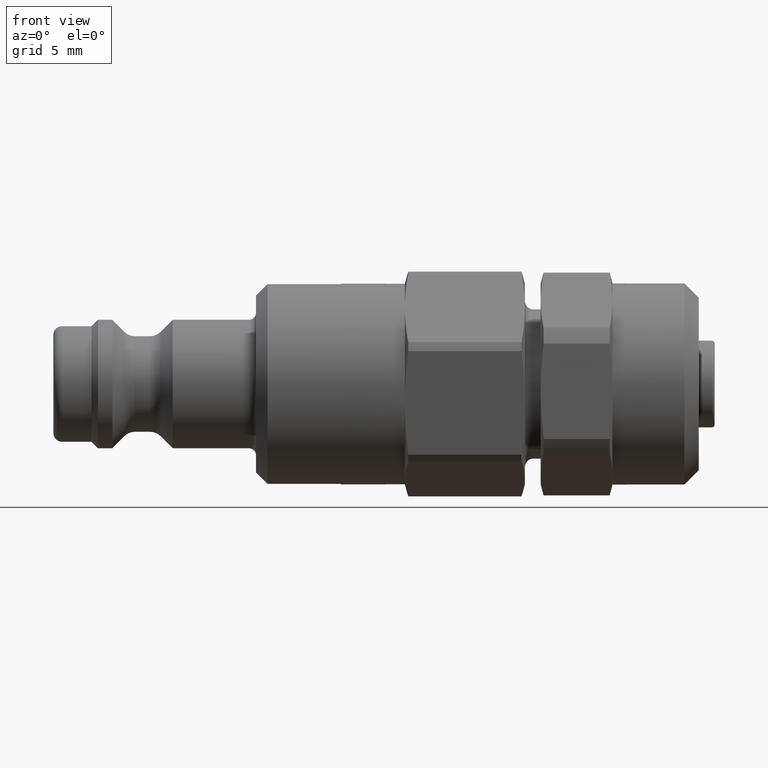
[diagram: clean part render]
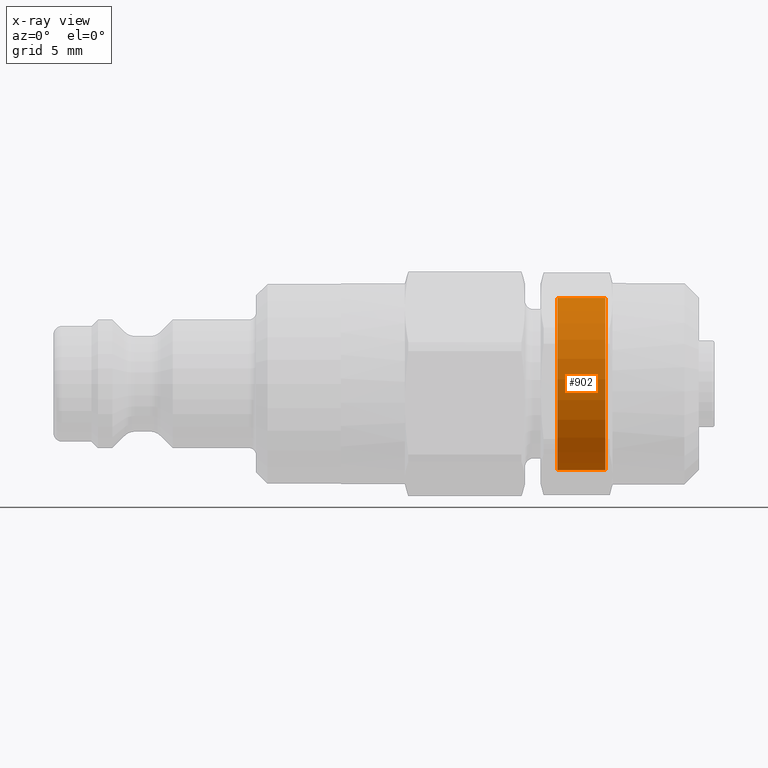
[diagram: x-ray — body ghosted, one internal face saturated and labeled with its STEP entity id]
A machine part, front view, then the same camera in x-ray: the body is ghosted and one INTERNAL B-rep face — a face not visible from any outside direction — is saturated and labeled: STEP entity #902.
In plain terms, the highlighted cylindrical surface (bore or boss wall) has radius 6 mm, axis along (-1, 0, 0).
Its self-contained STEP definition (entity closure, byte-faithful):
#851=CARTESIAN_POINT('',(7.600000000000002,6.000000000000004,-7.347881E-016));
#852=VERTEX_POINT('',#851);
#853=CARTESIAN_POINT('',(7.600000000000002,0.0,0.0));
#854=DIRECTION('',(-1.0,0.0,0.0));
#855=DIRECTION('',(0.0,-1.0,0.0));
#856=AXIS2_PLACEMENT_3D('',#853,#854,#855);
#857=CIRCLE('',#856,6.000000000000004);
#858=EDGE_CURVE('',#852,#852,#857,.T.);
#883=CARTESIAN_POINT('',(9.019059892324153,0.0,0.0));
#884=DIRECTION('',(1.0,0.0,0.0));
#885=DIRECTION('',(0.0,1.0,0.0));
#886=AXIS2_PLACEMENT_3D('',#883,#884,#885);
#887=CYLINDRICAL_SURFACE('',#886,6.000000000000004);
#888=CARTESIAN_POINT('',(10.938119784648297,6.000000000000001,0.0));
#889=VERTEX_POINT('',#888);
#890=CARTESIAN_POINT('',(10.938119784648297,0.0,0.0));
#891=DIRECTION('',(1.0,0.0,0.0));
#892=DIRECTION('',(0.0,1.0,0.0));
#893=AXIS2_PLACEMENT_3D('',#890,#891,#892);
#894=CIRCLE('',#893,6.000000000000001);
#895=EDGE_CURVE('',#889,#889,#894,.T.);
#896=ORIENTED_EDGE('',*,*,#895,.F.);
#897=EDGE_LOOP('',(#896));
#898=FACE_OUTER_BOUND('',#897,.T.);
#899=ORIENTED_EDGE('',*,*,#858,.F.);
#900=EDGE_LOOP('',(#899));
#901=FACE_BOUND('',#900,.T.);
#902=ADVANCED_FACE('',(#898,#901),#887,.T.);